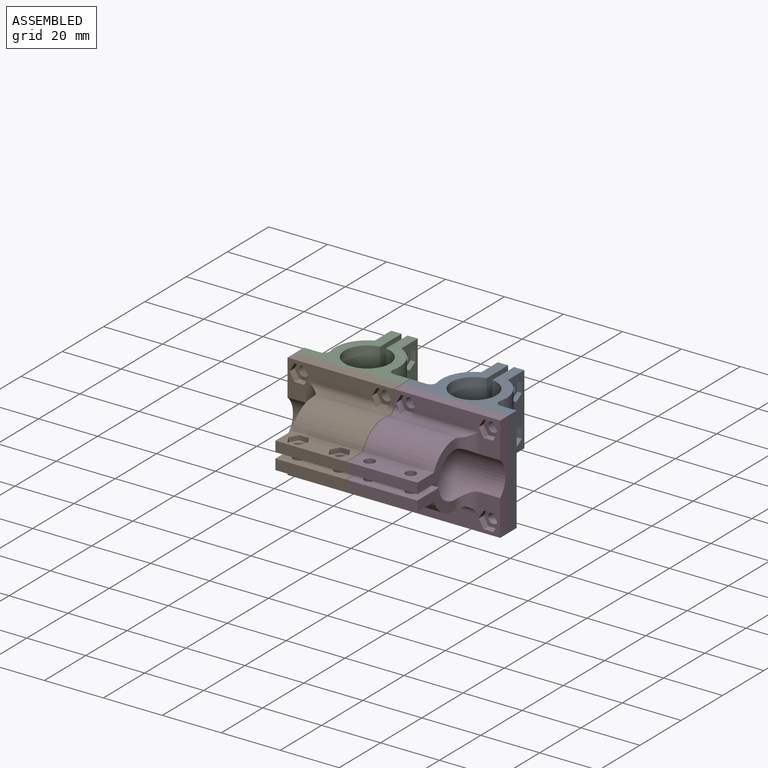
[diagram: assembled view]
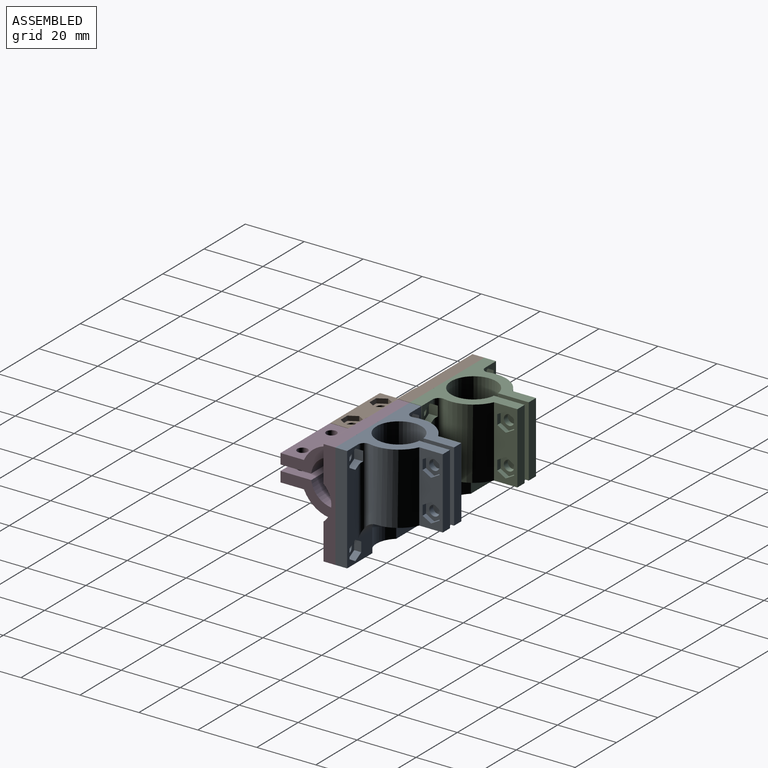
[diagram: assembled view, second angle]
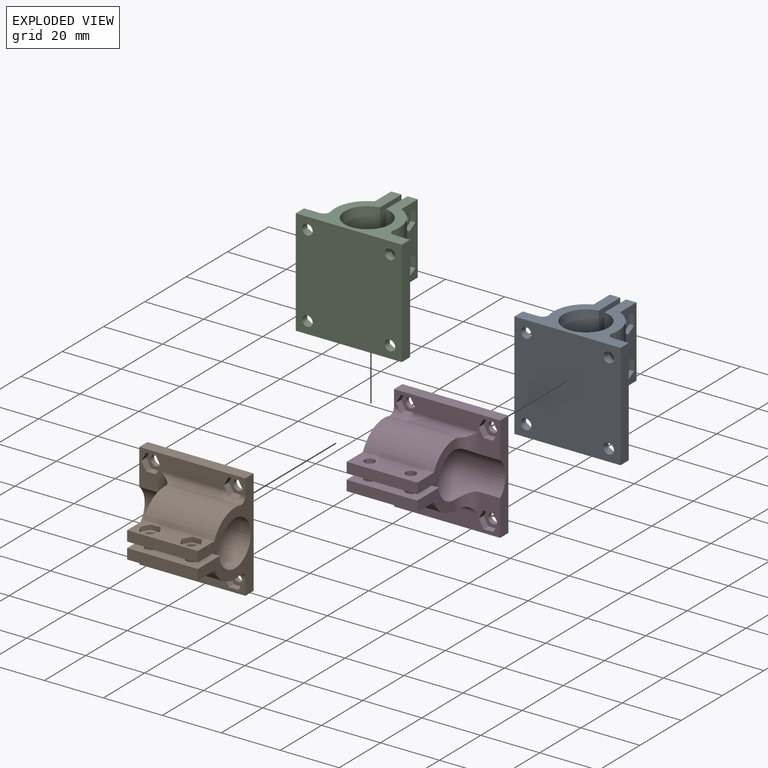
[diagram: exploded view]
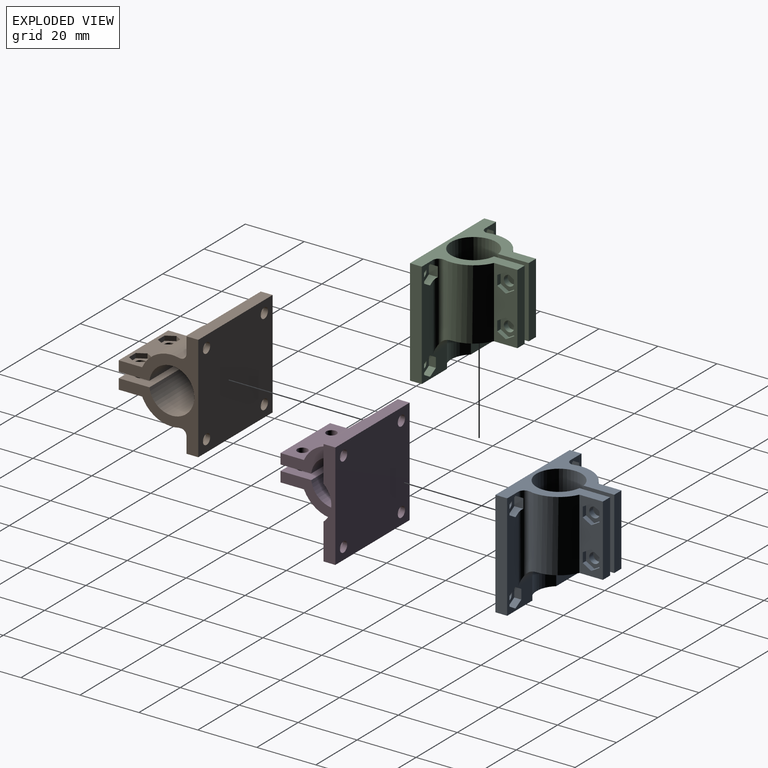
[diagram: exploded view, second angle]
ASSEMBLY  parts=4 mates=4
PART A: 72 faces, bbox 36.1x27.1x36.1 mm
  f0: plane 24x7.96mm, normal (1,0,0), area 134.8mm2, adj f13,f14,f20,f21,f58,f59,f60,f61
  f1: plane 24x10.42mm, normal (-1,0,0), area 230.7mm2, adj f14,f15,f20,f21,f56,f57
  f2: plane 24x10.42mm, normal (1,0,0), area 230.7mm2, adj f11,f15,f16,f20,f54,f55
  f3: plane 24x7.96mm, normal (-1,0,0), area 171.9mm2, adj f11,f16,f17,f20,f54,f55
  f4: cylinder r=2mm len=29mm, axis (0,0,-1), area 88.6mm2, adj f5,f13,f20,f23,f44,f45,f46
  f5: plane 36x12.21mm, normal (0,1,0), area 190.6mm2, adj f4,f12,f15,f20,f22,f23,f40,f41
  f6: cylinder r=1.75mm len=3.5mm, axis (0,-1,0), area 17.6mm2, adj f9,f43
  f7: cylinder r=1.75mm len=3.5mm, axis (0,-1,0), area 17.6mm2, adj f9,f33
  f8: cylinder r=1.75mm len=3.5mm, axis (0,-1,0), area 17.6mm2, adj f9,f32
  f9: plane 36x36mm, normal (0,-1,0), area 1257.5mm2, adj f6,f7,f8,f12,f19,f20,f22,f25
  f10: plane 36x12.21mm, normal (0,1,0), area 190.6mm2, adj f15,f18,f19,f20,f22,f24,f26,f27
  f11: plane 18x10mm, normal (0,0,-1), area 71.6mm2, adj f2,f3,f15,f16,f17,f24
  f12: plane 36x4mm, normal (1,0,0), area 144mm2, adj f5,f9,f20,f22
  f13: cylinder r=11mm len=24.69mm, axis (0,0,-1), area 365.5mm2, adj f0,f4,f20,f21,f23
  f14: plane 24x3.5mm, normal (0,1,0), area 84mm2, adj f0,f1,f20,f21
  f15: cylinder r=7.65mm len=36mm, axis (0,0,-1), area 1275.8mm2, adj f1,f2,f5,f10,f11,f20,f21,f22
  f16: plane 24x3.5mm, normal (0,1,0), area 84mm2, adj f2,f3,f11,f20
  f17: cylinder r=11mm len=24.69mm, axis (0,0,-1), area 365.5mm2, adj f3,f11,f18,f20,f24
  f18: cylinder r=2mm len=29mm, axis (0,0,-1), area 88.6mm2, adj f10,f17,f20,f24,f27,f28,f29
  f19: plane 36x4mm, normal (-1,0,0), area 144mm2, adj f9,f10,f20,f22
  f20: plane 36x27mm, normal (0,0,1), area 304.8mm2, adj f0,f1,f2,f3,f4,f5,f9,f10
  f21: plane 18x10mm, normal (0,0,-1), area 71.6mm2, adj f0,f1,f13,f14,f15,f23
  f22: plane 36x4mm, normal (0,0,-1), area 122.7mm2, adj f5,f9,f10,f12,f15,f19
  f23: cylinder r=5mm len=6.86mm, axis (1,0,0), area 34.7mm2, adj f4,f5,f13,f15,f21
  f24: cylinder r=5mm len=6.86mm, axis (-1,0,0), area 34.7mm2, adj f10,f11,f15,f17,f18
  f25: cylinder r=1.75mm len=3.5mm, axis (0,-1,0), area 17.6mm2, adj f9,f53
  f26: plane 2.85x2.4mm, normal (0.5,0,-0.87), area 7.9mm2, adj f10,f27,f31,f32
  f27: plane 3.16x2.94mm, normal (-0.5,0,-0.87), area 8.3mm2, adj f10,f18,f26,f28,f32
  f28: plane 3.29x3.08mm, normal (-1,0,0), area 10.1mm2, adj f18,f27,f29,f32
  f29: plane 3.16x2.94mm, normal (-0.5,0,0.87), area 8.3mm2, adj f10,f18,f28,f30,f32
  f30: plane 2.85x2.4mm, normal (0.5,0,0.87), area 7.9mm2, adj f10,f29,f31,f32
  f31: plane 3.29x2.4mm, normal (1,0,0), area 7.9mm2, adj f10,f26,f30,f32
  f32: plane 6.58x5.7mm, normal (0,1,0), area 18.5mm2, adj f8,f26,f27,f28,f29,f30,f31
  f33: plane 6.58x5.7mm, normal (0,1,0), area 18.5mm2, adj f7,f34,f35,f36,f37,f38,f39
  f34: plane 2.85x2.4mm, normal (-0.5,0,-0.87), area 7.9mm2, adj f10,f33,f35,f39
  f35: plane 3.29x2.4mm, normal (-1,0,0), area 7.9mm2, adj f10,f33,f34,f36
  f36: plane 2.85x2.4mm, normal (-0.5,0,0.87), area 7.9mm2, adj f10,f33,f35,f37
  f37: plane 2.85x2.4mm, normal (0.5,0,0.87), area 7.9mm2, adj f10,f33,f36,f38
  f38: plane 3.29x2.4mm, normal (1,0,0), area 7.9mm2, adj f10,f33,f37,f39
  f39: plane 2.85x2.4mm, normal (0.5,0,-0.87), area 7.9mm2, adj f10,f33,f34,f38
  f40: plane 2.85x2.4mm, normal (-0.5,0,-0.87), area 7.9mm2, adj f5,f41,f43,f46
  f41: plane 3.29x2.4mm, normal (-1,0,0), area 7.9mm2, adj f5,f40,f42,f43
  f42: plane 2.85x2.4mm, normal (-0.5,0,0.87), area 7.9mm2, adj f5,f41,f43,f44
  f43: plane 6.58x5.7mm, normal (0,1,0), area 18.5mm2, adj f6,f40,f41,f42,f44,f45,f46
  f44: plane 3.16x2.94mm, normal (0.5,0,0.87), area 8.3mm2, adj f4,f5,f42,f43,f45
  f45: plane 3.29x3.08mm, normal (1,0,0), area 10.1mm2, adj f4,f43,f44,f46
  f46: plane 3.16x2.94mm, normal (0.5,0,-0.87), area 8.3mm2, adj f4,f5,f40,f43,f45
  f47: plane 2.85x2.4mm, normal (-0.5,0,0.87), area 7.9mm2, adj f5,f48,f52,f53
  f48: plane 2.85x2.4mm, normal (0.5,0,0.87), area 7.9mm2, adj f5,f47,f49,f53
  f49: plane 3.29x2.4mm, normal (1,0,0), area 7.9mm2, adj f5,f48,f50,f53
  f50: plane 2.85x2.4mm, normal (0.5,0,-0.87), area 7.9mm2, adj f5,f49,f51,f53
  f51: plane 2.85x2.4mm, normal (-0.5,0,-0.87), area 7.9mm2, adj f5,f50,f52,f53
  f52: plane 3.29x2.4mm, normal (-1,0,0), area 7.9mm2, adj f5,f47,f51,f53
  f53: plane 6.58x5.7mm, normal (0,1,0), area 18.5mm2, adj f25,f47,f48,f49,f50,f51,f52
  f54: cylinder r=1.75mm len=3.5mm, axis (1,0,0), area 38.5mm2, adj f2,f3
  f55: cylinder r=1.75mm len=3.5mm, axis (1,0,0), area 38.5mm2, adj f2,f3
  f56: cylinder r=1.75mm len=3.5mm, axis (1,0,0), area 20.9mm2, adj f1,f64
  f57: cylinder r=1.75mm len=3.5mm, axis (1,0,0), area 20.9mm2, adj f1,f71
  f58: plane 2.85x1.65mm, normal (0,-0.5,0.87), area 5.3mm2, adj f0,f59,f63,f64
  f59: plane 3.29x1.6mm, normal (0,-1,0), area 5.3mm2, adj f0,f58,f60,f64
  f60: plane 2.85x1.65mm, normal (0,-0.5,-0.87), area 5.3mm2, adj f0,f59,f61,f64
  f61: plane 2.85x1.65mm, normal (0,0.5,-0.87), area 5.3mm2, adj f0,f60,f62,f64
  f62: plane 3.29x1.6mm, normal (0,1,0), area 5.3mm2, adj f0,f61,f63,f64
  f63: plane 2.85x1.65mm, normal (0,0.5,0.87), area 5.3mm2, adj f0,f58,f62,f64
  f64: plane 6.58x5.7mm, normal (1,0,0), area 18.5mm2, adj f56,f58,f59,f60,f61,f62,f63
  f65: plane 2.85x1.65mm, normal (0,0.5,0.87), area 5.3mm2, adj f0,f66,f70,f71
  f66: plane 2.85x1.65mm, normal (0,-0.5,0.87), area 5.3mm2, adj f0,f65,f67,f71
  f67: plane 3.29x1.6mm, normal (0,-1,0), area 5.3mm2, adj f0,f66,f68,f71
  f68: plane 2.85x1.65mm, normal (0,-0.5,-0.87), area 5.3mm2, adj f0,f67,f69,f71
  f69: plane 2.85x1.65mm, normal (0,0.5,-0.87), area 5.3mm2, adj f0,f68,f70,f71
  f70: plane 3.29x1.6mm, normal (0,1,0), area 5.3mm2, adj f0,f65,f69,f71
  f71: plane 6.58x5.7mm, normal (1,0,0), area 18.5mm2, adj f57,f65,f66,f67,f68,f69,f70
PART B: same geometry as A
PART C: same geometry as A
PART D: same geometry as A
PLACE A t=(-86.22,10.85,-61.07)mm
PLACE B rot(axis=(0.71,0,0.71),180deg) t=(-116.38,10.85,-67.07)mm
PLACE C t=(-122.38,10.85,-61.07)mm
PLACE D rot(axis=(0.71,0,-0.71),180deg) t=(-92.22,10.85,-67.07)mm
MATE fastened B.f9 <-> C.f9  axis (0,1,0) through (-122.38,10.85,-67.07)mm
MATE planar C.f20 <-> A.f20  axis (0,0,1) through (-109.73,14.85,-49.07)mm
MATE slider D.f13 <-> B.f13  axis (1,0,0) through (-68.22,1.85,-67.07)mm
MATE fastened D.f9 <-> A.f9  axis (0,1,0) through (-86.22,10.85,-67.07)mm
